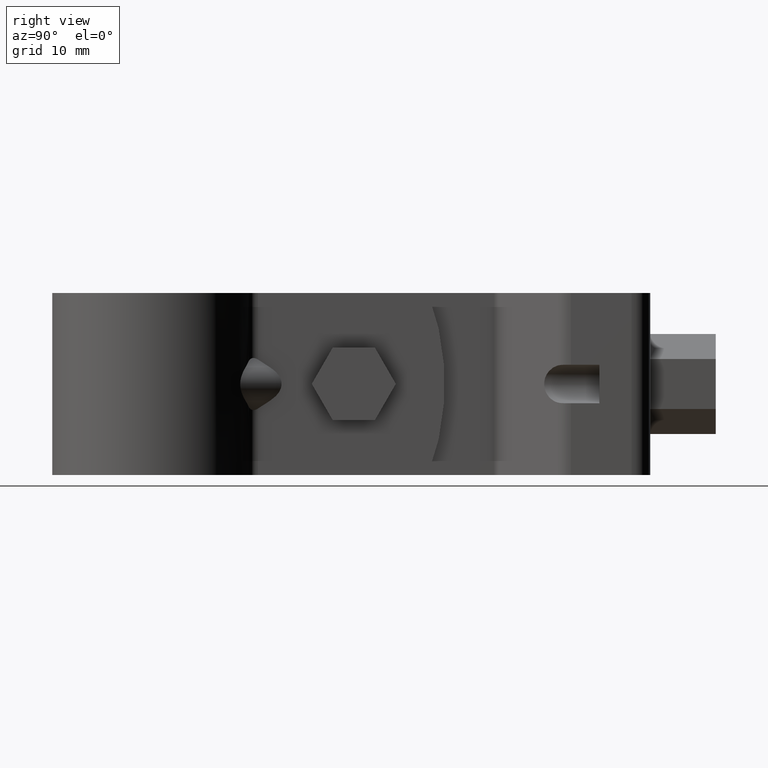
[diagram: clean part render]
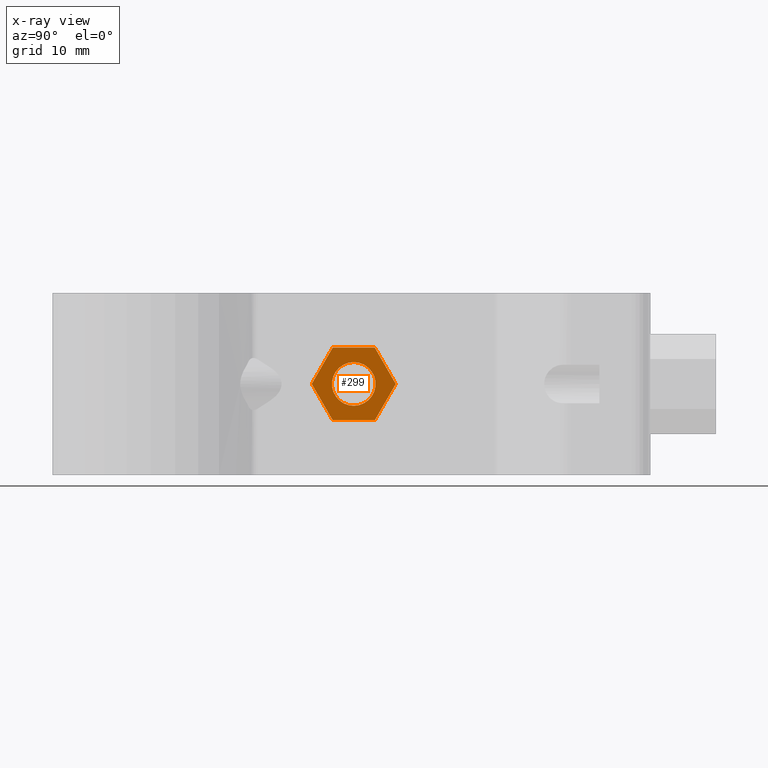
[diagram: x-ray — body ghosted, one internal face saturated and labeled with its STEP entity id]
A machine part, right view, then the same camera in x-ray: the body is ghosted and one INTERNAL B-rep face — a face not visible from any outside direction — is saturated and labeled: STEP entity #299.
In plain terms, the highlighted planar face has unit normal (-1, 0, 0).
Its self-contained STEP definition (entity closure, byte-faithful):
#299 = ADVANCED_FACE( '', ( #460, #461 ), #462, .T. );
#460 = FACE_OUTER_BOUND( '', #732, .T. );
#461 = FACE_BOUND( '', #733, .T. );
#462 = PLANE( '', #734 );
#732 = EDGE_LOOP( '', ( #1206, #1207, #1208, #1209, #1210, #1211 ) );
#733 = EDGE_LOOP( '', ( #1212 ) );
#734 = AXIS2_PLACEMENT_3D( '', #1213, #1214, #1215 );
#1206 = ORIENTED_EDGE( '', *, *, #2022, .F. );
#1207 = ORIENTED_EDGE( '', *, *, #2023, .F. );
#1208 = ORIENTED_EDGE( '', *, *, #2024, .F. );
#1209 = ORIENTED_EDGE( '', *, *, #2025, .F. );
#1210 = ORIENTED_EDGE( '', *, *, #2026, .F. );
#1211 = ORIENTED_EDGE( '', *, *, #2027, .F. );
#1212 = ORIENTED_EDGE( '', *, *, #2028, .T. );
#1213 = CARTESIAN_POINT( '', ( 5.10000000000000, 18.6736853417874, -4.99999999999856 ) );
#1214 = DIRECTION( '', ( -1.00000000000000, 6.06692130572647E-017, 0.000000000000000 ) );
#1215 = DIRECTION( '', ( 0.000000000000000, 0.000000000000000, 1.00000000000000 ) );
#2022 = EDGE_CURVE( '', #2399, #2400, #2401, .T. );
#2023 = EDGE_CURVE( '', #2402, #2399, #2403, .T. );
#2024 = EDGE_CURVE( '', #2404, #2402, #2405, .T. );
#2025 = EDGE_CURVE( '', #2406, #2404, #2407, .T. );
#2026 = EDGE_CURVE( '', #2408, #2406, #2409, .T. );
#2027 = EDGE_CURVE( '', #2400, #2408, #2410, .T. );
#2028 = EDGE_CURVE( '', #2411, #2411, #2412, .F. );
#2399 = VERTEX_POINT( '', #3043 );
#2400 = VERTEX_POINT( '', #3044 );
#2401 = LINE( '', #3045, #3046 );
#2402 = VERTEX_POINT( '', #3047 );
#2403 = LINE( '', #3048, #3049 );
#2404 = VERTEX_POINT( '', #3050 );
#2405 = LINE( '', #3051, #3052 );
#2406 = VERTEX_POINT( '', #3053 );
#2407 = LINE( '', #3054, #3055 );
#2408 = VERTEX_POINT( '', #3056 );
#2409 = LINE( '', #3057, #3058 );
#2410 = LINE( '', #3059, #3060 );
#2411 = VERTEX_POINT( '', #3061 );
#2412 = CIRCLE( '', #3062, 2.99999999999914 );
#3043 = CARTESIAN_POINT( '', ( 5.10000000000000, 24.4471880336820, -4.99999999999856 ) );
#3044 = CARTESIAN_POINT( '', ( 5.10000000000000, 30.2206907255766, -4.99999999999856 ) );
#3045 = CARTESIAN_POINT( '', ( 5.10000000000000, 24.4471880336820, -4.99999999999856 ) );
#3046 = VECTOR( '', #3837, 999.999999999904 );
#3047 = CARTESIAN_POINT( '', ( 5.10000000000000, 21.5604366877347, -8.67361737988404E-016 ) );
#3048 = CARTESIAN_POINT( '', ( 5.10000000000000, 21.5604366877347, 1.93178474057305E-016 ) );
#3049 = VECTOR( '', #3838, 999.999999999904 );
#3050 = CARTESIAN_POINT( '', ( 5.10000000000000, 24.4471880336820, 4.99999999999856 ) );
#3051 = CARTESIAN_POINT( '', ( 5.10000000000000, 24.4471880336820, 4.99999999999856 ) );
#3052 = VECTOR( '', #3839, 999.999999999904 );
#3053 = CARTESIAN_POINT( '', ( 5.10000000000000, 30.2206907255766, 4.99999999999856 ) );
#3054 = CARTESIAN_POINT( '', ( 5.10000000000000, 30.2206907255766, 4.99999999999856 ) );
#3055 = VECTOR( '', #3840, 999.999999999904 );
#3056 = CARTESIAN_POINT( '', ( 5.10000000000000, 33.1074420715239, -8.67361737988404E-016 ) );
#3057 = CARTESIAN_POINT( '', ( 5.10000000000000, 33.1074420715239, -1.22087514200364E-015 ) );
#3058 = VECTOR( '', #3841, 999.999999999904 );
#3059 = CARTESIAN_POINT( '', ( 5.10000000000000, 30.2206907255766, -4.99999999999856 ) );
#3060 = VECTOR( '', #3842, 999.999999999904 );
#3061 = CARTESIAN_POINT( '', ( 5.10000000000000, 27.3339393796293, 2.99999999999914 ) );
#3062 = AXIS2_PLACEMENT_3D( '', #3843, #3844, #3845 );
#3837 = DIRECTION( '', ( 6.06692130572647E-017, 1.00000000000000, -3.00462919747432E-016 ) );
#3838 = DIRECTION( '', ( 3.03346065286324E-017, 0.500000000000000, -0.866025403784439 ) );
#3839 = DIRECTION( '', ( -3.03346065286324E-017, -0.500000000000000, -0.866025403784439 ) );
#3840 = DIRECTION( '', ( -6.06692130572647E-017, -1.00000000000000, 0.000000000000000 ) );
#3841 = DIRECTION( '', ( -3.03346065286324E-017, -0.500000000000000, 0.866025403784439 ) );
#3842 = DIRECTION( '', ( 3.03346065286324E-017, 0.500000000000000, 0.866025403784439 ) );
#3843 = CARTESIAN_POINT( '', ( 5.10000000000000, 27.3339393796293, -8.67361737988404E-016 ) );
#3844 = DIRECTION( '', ( -1.00000000000000, 6.06692130572647E-017, 0.000000000000000 ) );
#3845 = DIRECTION( '', ( 0.000000000000000, 0.000000000000000, 1.00000000000000 ) );